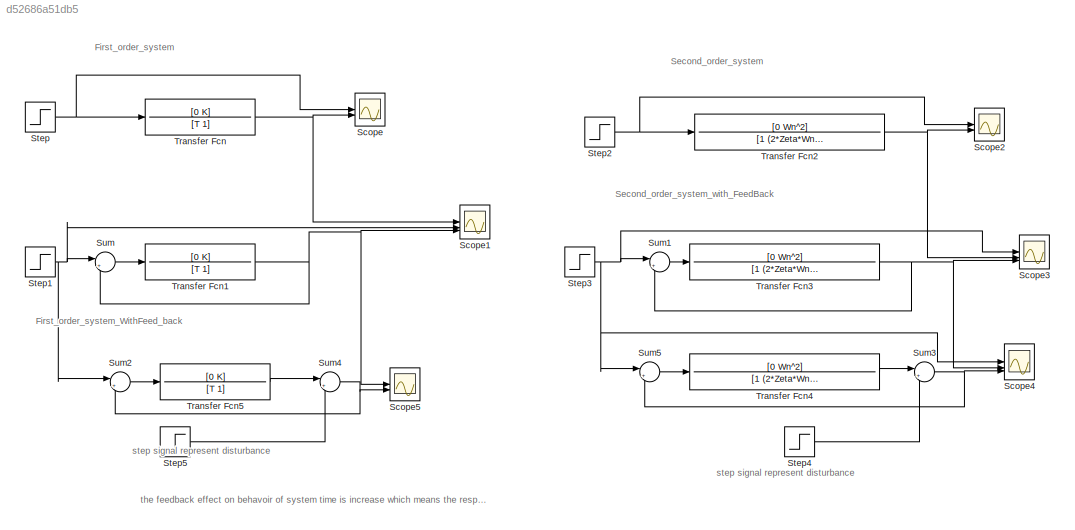
MODEL slx_d52686a51db5
KIND model
CONFIG AbsTol = auto
CONFIG EnableMultiTasking = off
CONFIG FixedStep = auto
CONFIG MaxStep = 0.001
CONFIG MinStep = auto
CONFIG RelTol = 1e-3
CONFIG SampleTimeConstraint = Unconstrained
CONFIG SolverName = VariableStepAuto
CONFIG StartTime = 0.0
CONFIG StopTime = 10.0
BLOCK [Scope] Scope
  Floating = off
  NumInputPorts = 2
  ScopeSpecificationString = Simulink.scopes.TimeScopeBlockCfg('CurrentConfiguration', extmgr.ConfigurationSet(extmgr.Configuration('Core','General UI',true),extmgr.Configuration('Core','Source UI',true),extmgr.Configuration('Sources','WiredSimulink',true),extmgr.Configuration('Visuals','Time Domain',true,'SerializedDisplays',{struct('MinYLimReal','-0.125','MaxYLimReal','1.125','YLabelReal','','MinYLimMag','0.00000','MaxYLimM...<+1987ch>
BLOCK [Scope] Scope1
  Floating = off
  NumInputPorts = 3
  ScopeSpecificationString = Simulink.scopes.TimeScopeBlockCfg('CurrentConfiguration', extmgr.ConfigurationSet(extmgr.Configuration('Core','General UI',true),extmgr.Configuration('Core','Source UI',true),extmgr.Configuration('Sources','WiredSimulink',true,'DataLoggingVariableName','ScopeData1'),extmgr.Configuration('Visuals','Time Domain',true,'SerializedDisplays',{struct('MinYLimReal','-0.1875','MaxYLimReal','1.6875','YLabel...<+1472ch>
BLOCK [Scope] Scope2
  Floating = off
  NumInputPorts = 2
  ScopeSpecificationString = Simulink.scopes.TimeScopeBlockCfg('CurrentConfiguration', extmgr.ConfigurationSet(extmgr.Configuration('Core','General UI',true),extmgr.Configuration('Core','Source UI',true),extmgr.Configuration('Sources','WiredSimulink',true,'DataLoggingVariableName','ScopeData2'),extmgr.Configuration('Visuals','Time Domain',true,'SerializedDisplays',{struct('MinYLimReal','-0.125','MaxYLimReal','1.125','YLabelRe...<+1451ch>
BLOCK [Scope] Scope3
  Floating = off
  NumInputPorts = 3
  ScopeSpecificationString = Simulink.scopes.TimeScopeBlockCfg('CurrentConfiguration', extmgr.ConfigurationSet(extmgr.Configuration('Core','General UI',true),extmgr.Configuration('Core','Source UI',true),extmgr.Configuration('Sources','WiredSimulink',true,'DataLoggingVariableName','ScopeData3'),extmgr.Configuration('Visuals','Time Domain',true,'SerializedDisplays',{struct('MinYLimReal','-0.125','MaxYLimReal','1.125','YLabelRe...<+1493ch>
BLOCK [Scope] Scope4
  Floating = off
  NumInputPorts = 3
  ScopeSpecificationString = Simulink.scopes.TimeScopeBlockCfg('CurrentConfiguration', extmgr.ConfigurationSet(extmgr.Configuration('Core','General UI',true),extmgr.Configuration('Core','Source UI',true),extmgr.Configuration('Sources','WiredSimulink',true,'DataLoggingVariableName','ScopeData1'),extmgr.Configuration('Visuals','Time Domain',true,'SerializedDisplays',{struct('MinYLimReal','-0.125','MaxYLimReal','1.125','YLabelRe...<+1484ch>
BLOCK [Scope] Scope5
  Floating = off
  NumInputPorts = 2
  ScopeSpecificationString = Simulink.scopes.TimeScopeBlockCfg('CurrentConfiguration', extmgr.ConfigurationSet(extmgr.Configuration('Core','General UI',true),extmgr.Configuration('Core','Source UI',true),extmgr.Configuration('Sources','WiredSimulink',true,'DataLoggingVariableName','ScopeData2'),extmgr.Configuration('Visuals','Time Domain',true,'SerializedDisplays',{struct('MinYLimReal','-0.30003','MaxYLimReal','0.7','YLabelRe...<+1394ch>
BLOCK [Step] Step
  SampleTime = 0
BLOCK [Step] Step1
  SampleTime = 0
BLOCK [Step] Step2
  SampleTime = 0
BLOCK [Step] Step3
  SampleTime = 0
BLOCK [Step] Step4
  After = 0.3
  SampleTime = 0
  Time = 5
BLOCK [Step] Step5
  After = 0.8
  SampleTime = 0
  Time = 3
BLOCK [Sum] Sum
  Inputs = |+-
BLOCK [Sum] Sum1
  Inputs = |+-
BLOCK [Sum] Sum2
  Inputs = |+-
BLOCK [Sum] Sum3
  Inputs = |+-
BLOCK [Sum] Sum4
  Inputs = |+-
BLOCK [Sum] Sum5
  Inputs = |+-
BLOCK [TransferFcn] Transfer Fcn
  Denominator = [T 1]
  Numerator = [0 K]
BLOCK [TransferFcn] Transfer Fcn1
  Denominator = [T 1]
  Numerator = [0 K]
BLOCK [TransferFcn] Transfer Fcn2
  Denominator = [1 (2*Zeta*Wn) Wn^2]
  Numerator = [0 Wn^2]
BLOCK [TransferFcn] Transfer Fcn3
  Denominator = [1 (2*Zeta*Wn) Wn^2]
  Numerator = [0 Wn^2]
BLOCK [TransferFcn] Transfer Fcn4
  Denominator = [1 (2*Zeta*Wn) Wn^2]
  Numerator = [0 Wn^2]
BLOCK [TransferFcn] Transfer Fcn5
  Denominator = [T 1]
  Numerator = [0 K]
ANNOTATION (root): step signal represent disturbance
ANNOTATION (root): First_order_system
ANNOTATION (root): First_order_system_WithFeed_back
ANNOTATION (root): Second_order_system
ANNOTATION (root): Second_order_system_with_FeedBack
ANNOTATION (root): the feedback effect on behavoir of system time is increase which means the response time is faster - and stablitiy is increased but the gain decrease and this cause the steady state error values - and disturbace can controled by feed_back
NET Step1:1 -> Scope1:2, Sum2:1, Sum:1
NET Step2:1 -> Scope2:1, Transfer Fcn2:1
NET Step3:1 -> Scope3:1, Scope4:1, Sum1:1, Sum5:1
LINE Step4:1 -> Sum3:2
LINE Step5:1 -> Sum4:2
NET Step:1 -> Scope:1, Transfer Fcn:1
LINE Sum1:1 -> Transfer Fcn3:1
LINE Sum2:1 -> Transfer Fcn5:1
NET Sum3:1 -> Scope4:3, Sum5:2
NET Sum4:1 -> Scope5:2, Sum2:2
LINE Sum5:1 -> Transfer Fcn4:1
LINE Sum:1 -> Transfer Fcn1:1
NET Transfer Fcn1:1 -> Scope1:3, Scope5:1, Sum:2
NET Transfer Fcn2:1 -> Scope2:2, Scope3:2
NET Transfer Fcn3:1 -> Scope3:3, Scope4:2, Sum1:2
LINE Transfer Fcn4:1 -> Sum3:1
LINE Transfer Fcn5:1 -> Sum4:1
NET Transfer Fcn:1 -> Scope1:1, Scope:2
note: NET lines group one-source signal fan-out (src -> all destinations, sorted); 1:1 wires keep LINE
